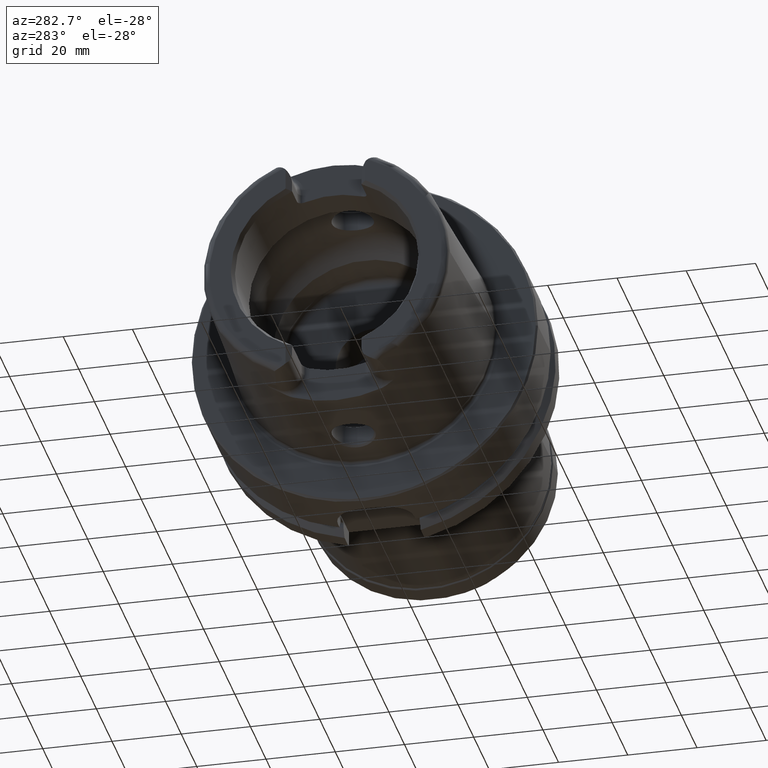
[diagram: clean part render]
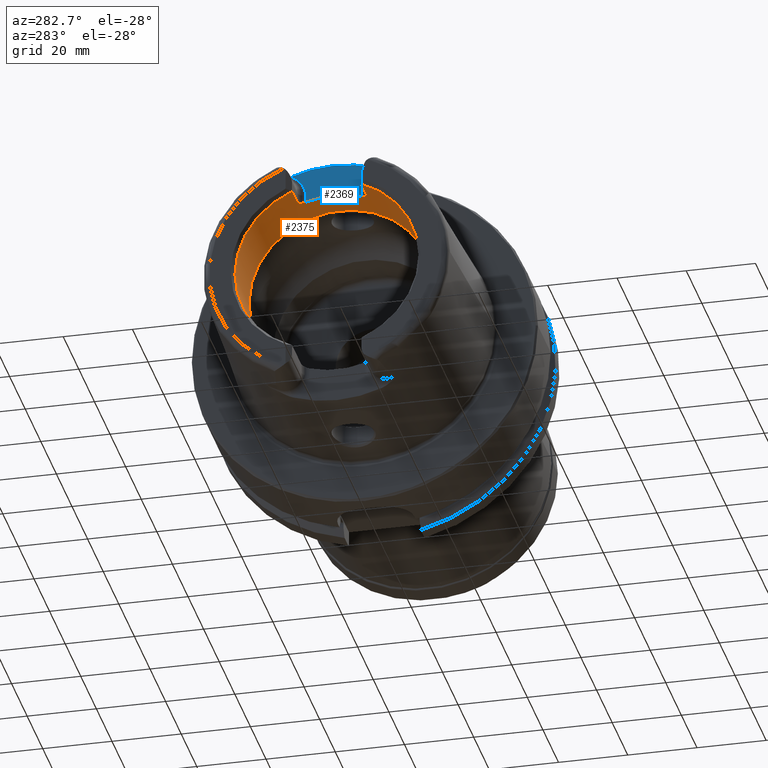
[diagram: same view with the hole feature highlighted: cylindrical wall and planar end face, labeled with their STEP entity ids]
A machine part, auxiliary view. The highlighted faces form one hole feature of diameter 53 mm: the cylindrical wall (entity #2375, orange) and its adjacent planar end face (entity #2369, blue) — they share a circular edge in the B-rep.
Wall:
#80=B_SPLINE_CURVE_WITH_KNOTS('',3,(#4908,#4909,#4910,#4911,#4912,#4913,
#4914,#4915,#4916,#4917),.UNSPECIFIED.,.F.,.F.,(4,2,2,2,4),(0.307245873696209,
0.387318131676521,0.467390389656833,0.542677307505841,0.617964225354849),
 .UNSPECIFIED.);
#81=B_SPLINE_CURVE_WITH_KNOTS('',3,(#4926,#4927,#4928,#4929,#4930,#4931,
#4932,#4933,#4934,#4935),.UNSPECIFIED.,.F.,.F.,(4,2,2,2,4),(0.61796422535485,
0.694491364966707,0.771018504578565,0.849854597041439,0.928690689504313),
 .UNSPECIFIED.);
#82=B_SPLINE_CURVE_WITH_KNOTS('',3,(#4948,#4949,#4950,#4951,#4952,#4953,
#4954,#4955,#4956,#4957),.UNSPECIFIED.,.F.,.F.,(4,2,2,2,4),(0.617964225354849,
0.693251143203857,0.768538061052865,0.848610319033177,0.928682577013489),
 .UNSPECIFIED.);
#83=B_SPLINE_CURVE_WITH_KNOTS('',3,(#4977,#4978,#4979,#4980,#4981,#4982,
#4983,#4984,#4985,#4986),.UNSPECIFIED.,.F.,.F.,(4,2,2,2,4),(0.307245873696209,
0.387318131676521,0.467390389656833,0.542677307505841,0.617964225354849),
 .UNSPECIFIED.);
#182=LINE('',#3676,#291);
#190=LINE('',#3751,#299);
#194=LINE('',#3815,#303);
#255=LINE('',#4973,#364);
#259=LINE('',#5023,#368);
#291=VECTOR('',#2945,10.);
#299=VECTOR('',#2991,10.);
#303=VECTOR('',#3013,10.);
#364=VECTOR('',#3306,10.);
#368=VECTOR('',#3352,26.5);
#408=CYLINDRICAL_SURFACE('',#2672,26.5);
#513=FACE_OUTER_BOUND('',#644,.T.);
#644=EDGE_LOOP('',(#2095,#2096,#2097,#2098,#2099,#2100,#2101,#2102,#2103,
#2104,#2105,#2106,#2107,#2108,#2109,#2110,#2111,#2112));
#741=CIRCLE('',#2520,26.5);
#742=CIRCLE('',#2521,26.5);
#811=CIRCLE('',#2651,26.5);
#816=CIRCLE('',#2663,26.5);
#817=CIRCLE('',#2666,26.5);
#820=CIRCLE('',#2673,26.5);
#821=CIRCLE('',#2674,26.5);
#822=CIRCLE('',#2675,26.5);
#930=VERTEX_POINT('',#3666);
#933=VERTEX_POINT('',#3674);
#942=VERTEX_POINT('',#3723);
#944=VERTEX_POINT('',#3729);
#945=VERTEX_POINT('',#3731);
#951=VERTEX_POINT('',#3749);
#957=VERTEX_POINT('',#3782);
#962=VERTEX_POINT('',#3814);
#1077=VERTEX_POINT('',#4906);
#1079=VERTEX_POINT('',#4925);
#1083=VERTEX_POINT('',#4946);
#1084=VERTEX_POINT('',#4947);
#1086=VERTEX_POINT('',#4967);
#1088=VERTEX_POINT('',#5018);
#1089=VERTEX_POINT('',#5019);
#1090=VERTEX_POINT('',#5021);
#1210=EDGE_CURVE('',#930,#933,#182,.T.);
#1223=EDGE_CURVE('',#944,#945,#741,.T.);
#1224=EDGE_CURVE('',#945,#942,#742,.T.);
#1233=EDGE_CURVE('',#944,#951,#190,.T.);
#1246=EDGE_CURVE('',#962,#957,#194,.T.);
#1412=EDGE_CURVE('',#1077,#951,#80,.T.);
#1416=EDGE_CURVE('',#962,#1079,#81,.T.);
#1422=EDGE_CURVE('',#1083,#1084,#82,.T.);
#1428=EDGE_CURVE('',#1086,#1084,#811,.T.);
#1431=EDGE_CURVE('',#1083,#942,#255,.T.);
#1434=EDGE_CURVE('',#1086,#933,#83,.T.);
#1438=EDGE_CURVE('',#1077,#1079,#816,.T.);
#1440=EDGE_CURVE('',#930,#957,#817,.T.);
#1444=EDGE_CURVE('',#1088,#1089,#820,.T.);
#1445=EDGE_CURVE('',#1090,#1088,#821,.T.);
#1446=EDGE_CURVE('',#1090,#945,#259,.T.);
#1447=EDGE_CURVE('',#1089,#1090,#822,.T.);
#2095=ORIENTED_EDGE('',*,*,#1444,.F.);
#2096=ORIENTED_EDGE('',*,*,#1445,.F.);
#2097=ORIENTED_EDGE('',*,*,#1446,.T.);
#2098=ORIENTED_EDGE('',*,*,#1223,.F.);
#2099=ORIENTED_EDGE('',*,*,#1233,.T.);
#2100=ORIENTED_EDGE('',*,*,#1412,.F.);
#2101=ORIENTED_EDGE('',*,*,#1438,.T.);
#2102=ORIENTED_EDGE('',*,*,#1416,.F.);
#2103=ORIENTED_EDGE('',*,*,#1246,.T.);
#2104=ORIENTED_EDGE('',*,*,#1440,.F.);
#2105=ORIENTED_EDGE('',*,*,#1210,.T.);
#2106=ORIENTED_EDGE('',*,*,#1434,.F.);
#2107=ORIENTED_EDGE('',*,*,#1428,.T.);
#2108=ORIENTED_EDGE('',*,*,#1422,.F.);
#2109=ORIENTED_EDGE('',*,*,#1431,.T.);
#2110=ORIENTED_EDGE('',*,*,#1224,.F.);
#2111=ORIENTED_EDGE('',*,*,#1446,.F.);
#2112=ORIENTED_EDGE('',*,*,#1447,.F.);
#2375=ADVANCED_FACE('',(#513),#408,.F.);
#2520=AXIS2_PLACEMENT_3D('',#3732,#2969,#2970);
#2521=AXIS2_PLACEMENT_3D('',#3733,#2971,#2972);
#2651=AXIS2_PLACEMENT_3D('',#4968,#3299,#3300);
#2663=AXIS2_PLACEMENT_3D('',#4995,#3327,#3328);
#2666=AXIS2_PLACEMENT_3D('',#5010,#3333,#3334);
#2672=AXIS2_PLACEMENT_3D('',#5017,#3346,#3347);
#2673=AXIS2_PLACEMENT_3D('',#5020,#3348,#3349);
#2674=AXIS2_PLACEMENT_3D('',#5022,#3350,#3351);
#2675=AXIS2_PLACEMENT_3D('',#5024,#3353,#3354);
#2945=DIRECTION('',(1.,0.,0.));
#2969=DIRECTION('center_axis',(1.,0.,0.));
#2970=DIRECTION('ref_axis',(0.,-1.,0.));
#2971=DIRECTION('center_axis',(1.,0.,0.));
#2972=DIRECTION('ref_axis',(0.,-1.,0.));
#2991=DIRECTION('',(1.,0.,0.));
#3013=DIRECTION('',(-1.,0.,0.));
#3299=DIRECTION('center_axis',(-1.,0.,0.));
#3300=DIRECTION('ref_axis',(0.,1.,0.));
#3306=DIRECTION('',(-1.,0.,0.));
#3327=DIRECTION('center_axis',(-1.,0.,0.));
#3328=DIRECTION('ref_axis',(0.,1.,0.));
#3333=DIRECTION('center_axis',(1.,0.,0.));
#3334=DIRECTION('ref_axis',(0.,-1.,0.));
#3346=DIRECTION('center_axis',(-1.,0.,0.));
#3347=DIRECTION('ref_axis',(0.,1.,0.));
#3348=DIRECTION('center_axis',(-1.,0.,0.));
#3349=DIRECTION('ref_axis',(0.,0.,1.));
#3350=DIRECTION('center_axis',(-1.,0.,0.));
#3351=DIRECTION('ref_axis',(0.,0.,1.));
#3352=DIRECTION('',(-1.,0.,0.));
#3353=DIRECTION('center_axis',(-1.,0.,0.));
#3354=DIRECTION('ref_axis',(0.,0.,1.));
#3666=CARTESIAN_POINT('',(-48.5,10.01,-24.5367051577835));
#3674=CARTESIAN_POINT('',(-37.,10.01,-24.5367051577835));
#3676=CARTESIAN_POINT('',(-40.2903629710818,10.01,-24.5367051577835));
#3723=CARTESIAN_POINT('',(-48.5,-10.01,-24.5367051577835));
#3729=CARTESIAN_POINT('',(-48.5,-10.01,24.5367051577835));
#3731=CARTESIAN_POINT('',(-48.5,-26.5,3.24531401774049E-15));
#3732=CARTESIAN_POINT('Origin',(-48.5,0.,0.));
#3733=CARTESIAN_POINT('Origin',(-48.5,0.,0.));
#3749=CARTESIAN_POINT('',(-42.,-10.01,24.5367051577835));
#3751=CARTESIAN_POINT('',(-40.2903629710818,-10.01,24.5367051577835));
#3782=CARTESIAN_POINT('',(-48.5,10.01,24.5367051577835));
#3814=CARTESIAN_POINT('',(-42.,10.01,24.5367051577835));
#3815=CARTESIAN_POINT('',(-40.2903629710818,10.01,24.5367051577835));
#4906=CARTESIAN_POINT('',(-40.,-8.01,25.2604414054862));
#4908=CARTESIAN_POINT('Ctrl Pts',(-40.,-8.01,25.2604414054862));
#4909=CARTESIAN_POINT('Ctrl Pts',(-40.,-8.26442271458071,25.1797648285777));
#4910=CARTESIAN_POINT('Ctrl Pts',(-40.0513332778729,-8.53503831367686,25.0892968127514));
#4911=CARTESIAN_POINT('Ctrl Pts',(-40.2604388709541,-9.03317850506395,24.9142806373643));
#4912=CARTESIAN_POINT('Ctrl Pts',(-40.4182028025644,-9.2607746884821,24.8299262887475));
#4913=CARTESIAN_POINT('Ctrl Pts',(-40.7762398849713,-9.61038047170956,24.6966285655713));
#4914=CARTESIAN_POINT('Ctrl Pts',(-40.996584045901,-9.75993653512726,24.6374761492843));
#4915=CARTESIAN_POINT('Ctrl Pts',(-41.4829332858843,-9.95981108540838,24.557356442995));
#4916=CARTESIAN_POINT('Ctrl Pts',(-41.74904360717,-10.01,24.5367051577835));
#4917=CARTESIAN_POINT('Ctrl Pts',(-42.,-10.01,24.5367051577835));
#4925=CARTESIAN_POINT('',(-40.,8.01,25.2604414054862));
#4926=CARTESIAN_POINT('Ctrl Pts',(-42.,10.01,24.5367051577835));
#4927=CARTESIAN_POINT('Ctrl Pts',(-41.7449095346271,10.01,24.5367051577835));
#4928=CARTESIAN_POINT('Ctrl Pts',(-41.4747619014646,9.95816285425487,24.5580391842641));
#4929=CARTESIAN_POINT('Ctrl Pts',(-40.9823460284033,9.75229566196282,24.640515927451));
#4930=CARTESIAN_POINT('Ctrl Pts',(-40.7599680829949,9.59839520774108,24.7013267120605));
#4931=CARTESIAN_POINT('Ctrl Pts',(-40.4063494382929,9.24477656303909,24.8358806096526));
#4932=CARTESIAN_POINT('Ctrl Pts',(-40.2529543645221,9.01930384320105,24.9192727261742));
#4933=CARTESIAN_POINT('Ctrl Pts',(-40.049776768453,8.52719637786957,25.0919293188873));
#4934=CARTESIAN_POINT('Ctrl Pts',(-40.,8.26049490494288,25.1810103236462));
#4935=CARTESIAN_POINT('Ctrl Pts',(-40.,8.01,25.2604414054862));
#4946=CARTESIAN_POINT('',(-37.,-10.01,-24.5367051577835));
#4947=CARTESIAN_POINT('',(-35.,-8.01,-25.2604414054862));
#4948=CARTESIAN_POINT('Ctrl Pts',(-37.,-10.01,-24.5367051577835));
#4949=CARTESIAN_POINT('Ctrl Pts',(-36.74904360717,-10.01,-24.5367051577835));
#4950=CARTESIAN_POINT('Ctrl Pts',(-36.4829332858843,-9.95981108540838,-24.557356442995));
#4951=CARTESIAN_POINT('Ctrl Pts',(-35.9965840459011,-9.75993653512726,-24.6374761492843));
#4952=CARTESIAN_POINT('Ctrl Pts',(-35.7762398849713,-9.61038047170956,-24.6966285655713));
#4953=CARTESIAN_POINT('Ctrl Pts',(-35.4182028025644,-9.2607746884821,-24.8299262887475));
#4954=CARTESIAN_POINT('Ctrl Pts',(-35.2604388709541,-9.03317850506395,-24.9142806373643));
#4955=CARTESIAN_POINT('Ctrl Pts',(-35.0513332778729,-8.53503831367686,-25.0892968127514));
#4956=CARTESIAN_POINT('Ctrl Pts',(-35.,-8.26442271458071,-25.1797648285777));
#4957=CARTESIAN_POINT('Ctrl Pts',(-35.,-8.01,-25.2604414054862));
#4967=CARTESIAN_POINT('',(-35.,8.01,-25.2604414054862));
#4968=CARTESIAN_POINT('Origin',(-35.,0.,0.));
#4973=CARTESIAN_POINT('',(-40.2903629710818,-10.01,-24.5367051577835));
#4977=CARTESIAN_POINT('Ctrl Pts',(-35.,8.01,-25.2604414054862));
#4978=CARTESIAN_POINT('Ctrl Pts',(-35.,8.26442271458071,-25.1797648285777));
#4979=CARTESIAN_POINT('Ctrl Pts',(-35.0513332778729,8.53503831367686,-25.0892968127514));
#4980=CARTESIAN_POINT('Ctrl Pts',(-35.2604388709541,9.03317850506395,-24.9142806373643));
#4981=CARTESIAN_POINT('Ctrl Pts',(-35.4182028025644,9.2607746884821,-24.8299262887475));
#4982=CARTESIAN_POINT('Ctrl Pts',(-35.7762398849713,9.61038047170956,-24.6966285655713));
#4983=CARTESIAN_POINT('Ctrl Pts',(-35.9965840459011,9.75993653512726,-24.6374761492843));
#4984=CARTESIAN_POINT('Ctrl Pts',(-36.4829332858843,9.95981108540838,-24.557356442995));
#4985=CARTESIAN_POINT('Ctrl Pts',(-36.74904360717,10.01,-24.5367051577835));
#4986=CARTESIAN_POINT('Ctrl Pts',(-37.,10.01,-24.5367051577835));
#4995=CARTESIAN_POINT('Origin',(-40.,0.,0.));
#5010=CARTESIAN_POINT('Origin',(-48.5,0.,0.));
#5017=CARTESIAN_POINT('Origin',(-40.2903629710818,0.,0.));
#5018=CARTESIAN_POINT('',(-30.5807259421637,26.5,0.));
#5019=CARTESIAN_POINT('',(-30.5807259421637,-3.24531401774049E-15,-26.5));
#5020=CARTESIAN_POINT('Origin',(-30.5807259421637,0.,0.));
#5021=CARTESIAN_POINT('',(-30.5807259421637,-26.5,3.24531401774049E-15));
#5022=CARTESIAN_POINT('Origin',(-30.5807259421637,0.,0.));
#5023=CARTESIAN_POINT('',(-40.2903629710818,-26.5,3.24531401774049E-15));
#5024=CARTESIAN_POINT('Origin',(-30.5807259421637,0.,0.));
End face:
#133=PLANE('',#2662);
#249=LINE('',#4907,#358);
#250=LINE('',#4936,#359);
#358=VECTOR('',#3260,10.);
#359=VECTOR('',#3273,10.);
#507=FACE_OUTER_BOUND('',#638,.T.);
#638=EDGE_LOOP('',(#2065,#2066,#2067,#2068,#2069,#2070));
#754=CIRCLE('',#2544,36.003493987976);
#802=CIRCLE('',#2635,6.88);
#804=CIRCLE('',#2638,6.88);
#816=CIRCLE('',#2663,26.5);
#977=VERTEX_POINT('',#4071);
#978=VERTEX_POINT('',#4088);
#1076=VERTEX_POINT('',#4904);
#1077=VERTEX_POINT('',#4906);
#1078=VERTEX_POINT('',#4921);
#1079=VERTEX_POINT('',#4925);
#1266=EDGE_CURVE('',#977,#978,#754,.T.);
#1411=EDGE_CURVE('',#1076,#1077,#249,.T.);
#1413=EDGE_CURVE('',#978,#1076,#802,.T.);
#1415=EDGE_CURVE('',#1078,#977,#804,.T.);
#1417=EDGE_CURVE('',#1079,#1078,#250,.T.);
#1438=EDGE_CURVE('',#1077,#1079,#816,.T.);
#2065=ORIENTED_EDGE('',*,*,#1413,.F.);
#2066=ORIENTED_EDGE('',*,*,#1266,.F.);
#2067=ORIENTED_EDGE('',*,*,#1415,.F.);
#2068=ORIENTED_EDGE('',*,*,#1417,.F.);
#2069=ORIENTED_EDGE('',*,*,#1438,.F.);
#2070=ORIENTED_EDGE('',*,*,#1411,.F.);
#2369=ADVANCED_FACE('',(#507),#133,.T.);
#2544=AXIS2_PLACEMENT_3D('',#4089,#3029,#3030);
#2635=AXIS2_PLACEMENT_3D('',#4919,#3263,#3264);
#2638=AXIS2_PLACEMENT_3D('',#4923,#3269,#3270);
#2662=AXIS2_PLACEMENT_3D('',#4994,#3325,#3326);
#2663=AXIS2_PLACEMENT_3D('',#4995,#3327,#3328);
#3029=DIRECTION('center_axis',(1.,0.,0.));
#3030=DIRECTION('ref_axis',(0.,1.,0.));
#3260=DIRECTION('',(0.,0.,-1.));
#3263=DIRECTION('center_axis',(-1.,0.,0.));
#3264=DIRECTION('ref_axis',(0.,0.564947834751706,0.82512662301574));
#3269=DIRECTION('center_axis',(-1.,0.,0.));
#3270=DIRECTION('ref_axis',(0.,-0.564947834751705,0.825126623015741));
#3273=DIRECTION('',(0.,0.,1.));
#3325=DIRECTION('center_axis',(-1.,0.,0.));
#3326=DIRECTION('ref_axis',(0.,0.,1.));
#3327=DIRECTION('center_axis',(-1.,0.,0.));
#3328=DIRECTION('ref_axis',(0.,1.,0.));
#4071=CARTESIAN_POINT('',(-40.,12.4227760464511,33.7923987701664));
#4088=CARTESIAN_POINT('',(-40.,-12.4227760464511,33.7923987701664));
#4089=CARTESIAN_POINT('Origin',(-40.,0.,0.));
#4904=CARTESIAN_POINT('',(-40.,-8.01,27.37));
#4906=CARTESIAN_POINT('',(-40.,-8.01,25.2604414054862));
#4907=CARTESIAN_POINT('',(-40.,-8.01,23.5));
#4919=CARTESIAN_POINT('Origin',(-40.,-14.89,27.37));
#4921=CARTESIAN_POINT('',(-40.,8.01,27.37));
#4923=CARTESIAN_POINT('Origin',(-40.,14.89,27.37));
#4925=CARTESIAN_POINT('',(-40.,8.01,25.2604414054862));
#4936=CARTESIAN_POINT('',(-40.,8.01,28.185));
#4994=CARTESIAN_POINT('Origin',(-40.,0.,29.));
#4995=CARTESIAN_POINT('Origin',(-40.,0.,0.));